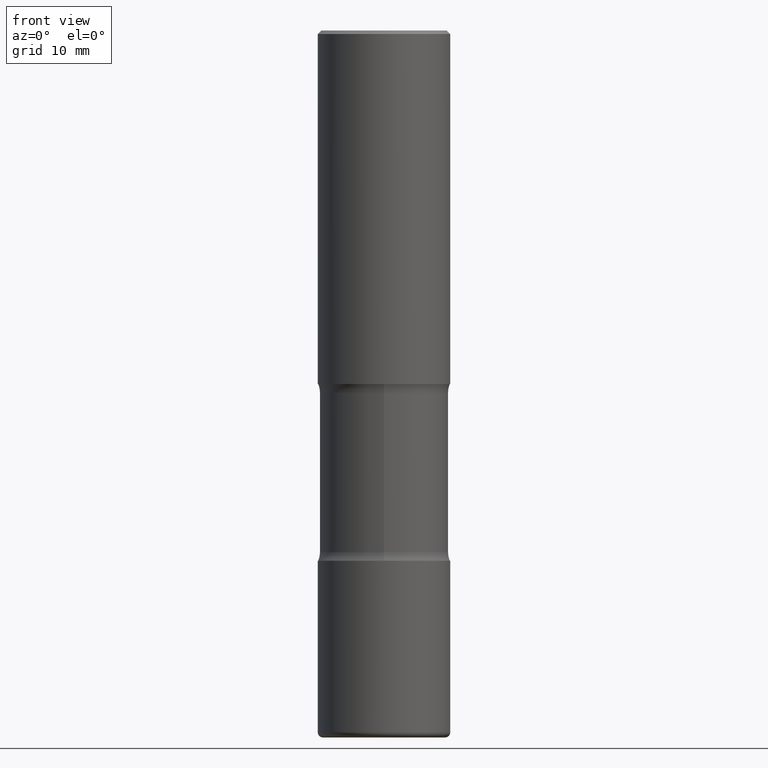
[diagram: clean part render]
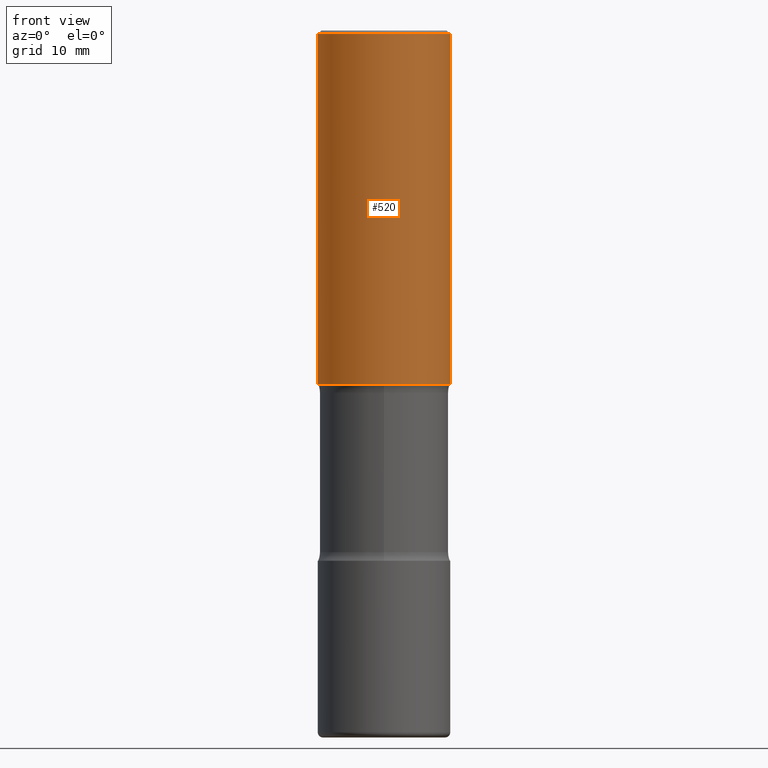
[diagram: same view with one face highlighted and labeled with its STEP entity id]
A machine part, front view. The second image highlights one B-rep face of the part: STEP entity #520.
In plain terms, the highlighted cylindrical surface (partial cylindrical patch) has radius 9.525 mm, axis along (-0, 0, 1).
Its self-contained STEP definition (entity closure, byte-faithful):
#13 = CARTESIAN_POINT ( 'NONE',  ( -0.3750000000000008327, 2.664535259100381613E-15, -1.844600658845593802E-29 ) ) ;
#19 = AXIS2_PLACEMENT_3D ( 'NONE', #163, #275, #283 ) ;
#28 = ORIENTED_EDGE ( 'NONE', *, *, #194, .F. ) ;
#33 = VERTEX_POINT ( 'NONE', #297 ) ;
#36 = ORIENTED_EDGE ( 'NONE', *, *, #316, .F. ) ;
#42 = EDGE_CURVE ( 'NONE', #33, #541, #473, .T. ) ;
#45 = VECTOR ( 'NONE', #300, 39.37007874015748143 ) ;
#70 = CARTESIAN_POINT ( 'NONE',  ( 4.890937612370273159E-31, -6.982962677686291609E-17, -0.02000000000000000042 ) ) ;
#84 = FACE_OUTER_BOUND ( 'NONE', #152, .T. ) ;
#88 = CARTESIAN_POINT ( 'NONE',  ( 0.3750000000000008327, -2.618611004132355933E-15, 1.828566290923479846E-29 ) ) ;
#121 = VERTEX_POINT ( 'NONE', #139 ) ;
#139 = CARTESIAN_POINT ( 'NONE',  ( -0.3750000000000009437, -8.618608931311945336E-16, -2.000000000000000000 ) ) ;
#142 = DIRECTION ( 'NONE',  ( -2.445468806185136877E-29, 3.491481338843145188E-15, 1.000000000000000000 ) ) ;
#151 = DIRECTION ( 'NONE',  ( 1.000000000000000000, -6.982962677686266711E-15, 0.000000000000000000 ) ) ;
#152 = EDGE_LOOP ( 'NONE', ( #28, #417, #418, #36 ) ) ;
#163 = CARTESIAN_POINT ( 'NONE',  ( 4.890937612370273194E-29, -6.982962677686291165E-15, -2.000000000000000000 ) ) ;
#194 = EDGE_CURVE ( 'NONE', #121, #454, #264, .T. ) ;
#209 = DIRECTION ( 'NONE',  ( 1.000000000000000000, -6.982962677686266711E-15, 4.876176775795935232E-29 ) ) ;
#255 = CYLINDRICAL_SURFACE ( 'NONE', #532, 0.3750000000000008327 ) ;
#257 = CARTESIAN_POINT ( 'NONE',  ( 0.3750000000000007772, -2.642516375941192367E-15, -0.02000000000000000042 ) ) ;
#264 = LINE ( 'NONE', #13, #427 ) ;
#275 = DIRECTION ( 'NONE',  ( -2.445468806185136597E-29, 3.491481338843145583E-15, 1.000000000000000000 ) ) ;
#283 = DIRECTION ( 'NONE',  ( 1.000000000000000000, -6.982962677686263555E-15, 0.000000000000000000 ) ) ;
#296 = CARTESIAN_POINT ( 'NONE',  ( 0.000000000000000000, 0.000000000000000000, 0.000000000000000000 ) ) ;
#297 = CARTESIAN_POINT ( 'NONE',  ( 0.3750000000000009437, -9.601573681818646704E-15, -2.000000000000000000 ) ) ;
#300 = DIRECTION ( 'NONE',  ( -2.445468806185136877E-29, 3.491481338843145188E-15, 1.000000000000000000 ) ) ;
#316 = EDGE_CURVE ( 'NONE', #454, #541, #491, .T. ) ;
#334 = EDGE_CURVE ( 'NONE', #121, #33, #400, .T. ) ;
#386 = CARTESIAN_POINT ( 'NONE',  ( -0.3750000000000007772, 2.548781377355492635E-15, -0.02000000000000000042 ) ) ;
#400 = CIRCLE ( 'NONE', #19, 0.3750000000000009437 ) ;
#412 = DIRECTION ( 'NONE',  ( -2.445468806185136597E-29, 3.491481338843145583E-15, 1.000000000000000000 ) ) ;
#417 = ORIENTED_EDGE ( 'NONE', *, *, #334, .T. ) ;
#418 = ORIENTED_EDGE ( 'NONE', *, *, #42, .T. ) ;
#427 = VECTOR ( 'NONE', #142, 39.37007874015748143 ) ;
#436 = AXIS2_PLACEMENT_3D ( 'NONE', #70, #412, #151 ) ;
#454 = VERTEX_POINT ( 'NONE', #386 ) ;
#472 = DIRECTION ( 'NONE',  ( -2.445468806185136597E-29, 3.491481338843145583E-15, 1.000000000000000000 ) ) ;
#473 = LINE ( 'NONE', #88, #45 ) ;
#491 = CIRCLE ( 'NONE', #436, 0.3750000000000007772 ) ;
#520 = ADVANCED_FACE ( 'NONE', ( #84 ), #255, .T. ) ;
#532 = AXIS2_PLACEMENT_3D ( 'NONE', #296, #472, #209 ) ;
#541 = VERTEX_POINT ( 'NONE', #257 ) ;